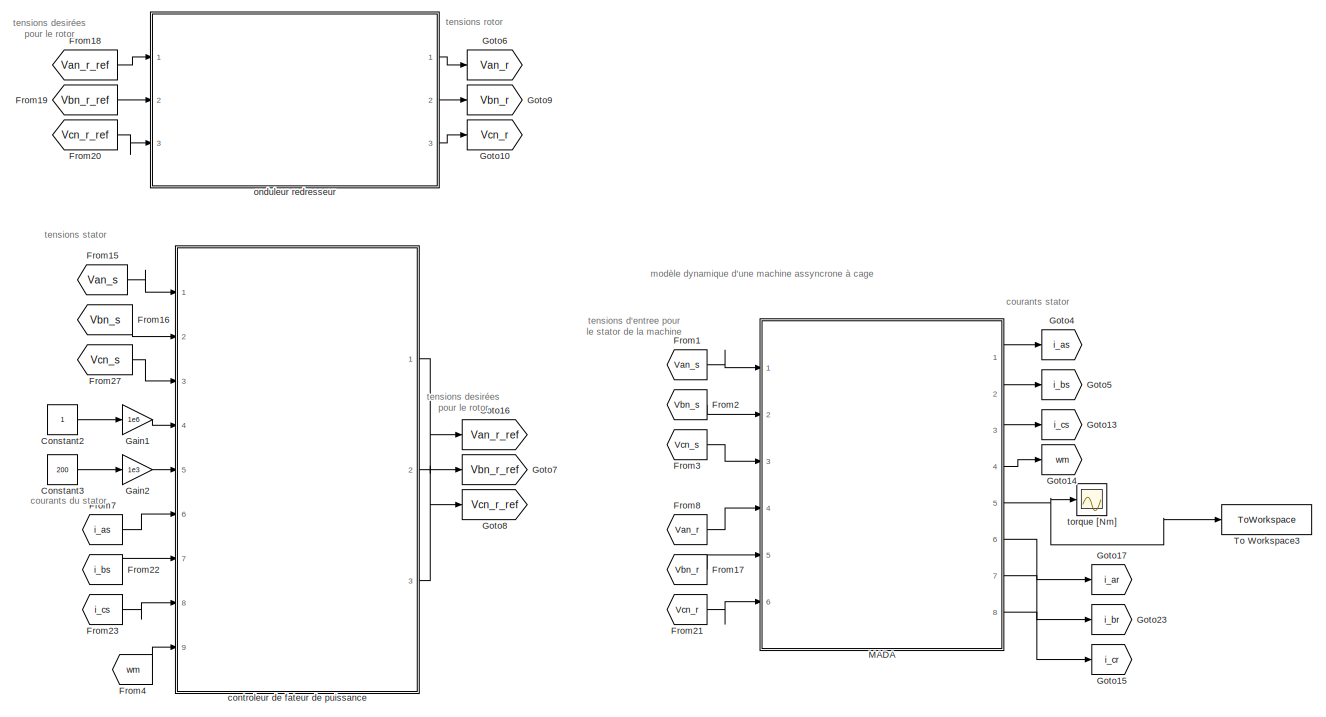
[diagram: root canvas - part 1/2, full width, top band]
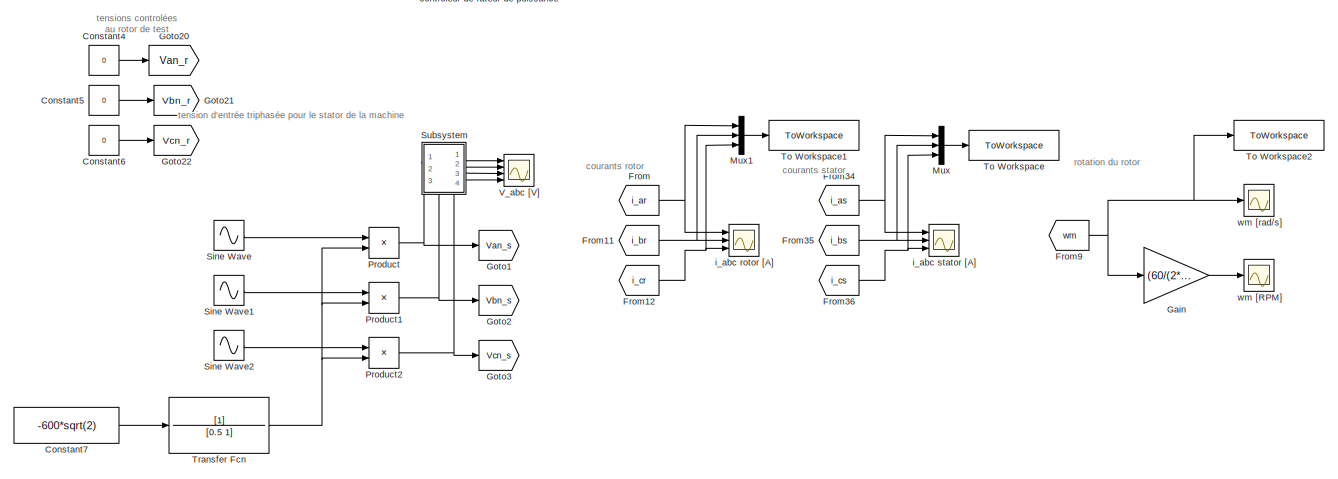
[diagram: root canvas - part 2/2, full width, bottom band]
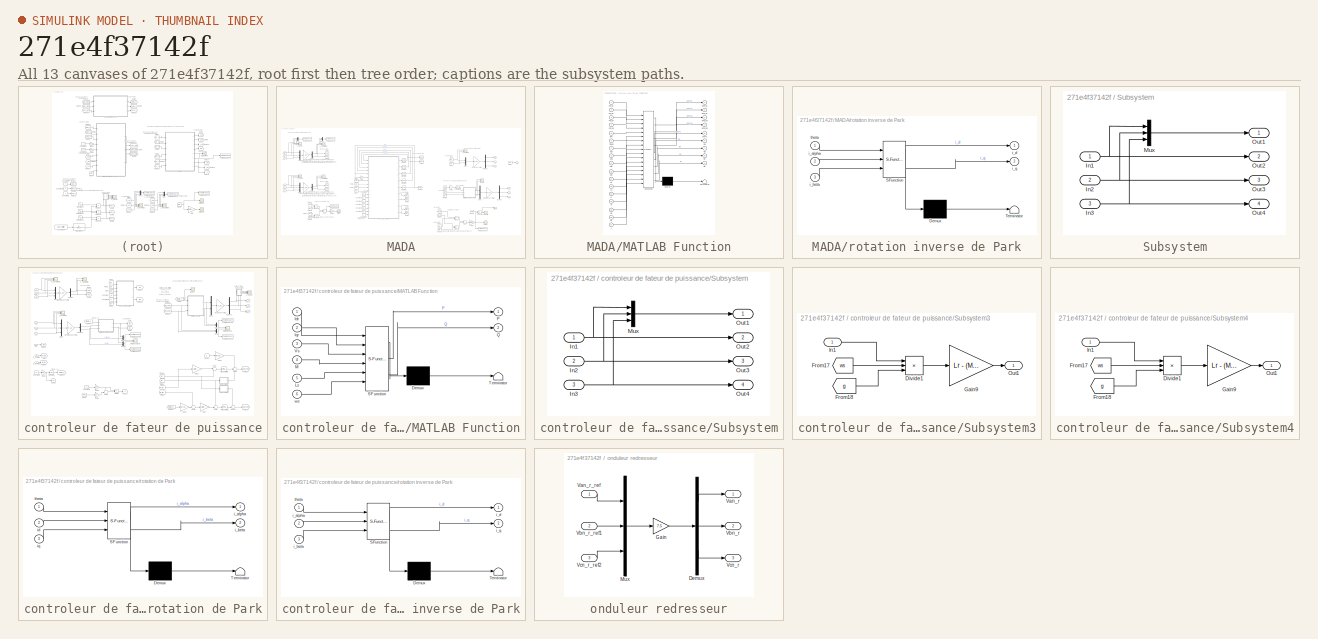
[diagram: thumbnail index - all 13 canvases of the model, root first then tree order]
MODEL slx_271e4f37142f
KIND model
CONFIG AbsTol = auto
CONFIG EnableMultiTasking = off
CONFIG FixedStep = fixed_step_size
CONFIG MaxStep = 1e-4
CONFIG MinStep = auto
CONFIG RelTol = 1e-3
CONFIG SampleTimeConstraint = Unconstrained
CONFIG Solver = ode4
CONFIG SolverName = ode4
CONFIG StartTime = start_time
CONFIG StopTime = stop_time
BLOCK [Constant] Constant2
BLOCK [Constant] Constant3
  Value = 200
BLOCK [Constant] Constant4
  Commented = on
  Value = 0
BLOCK [Constant] Constant5
  Commented = on
  Value = 0
BLOCK [Constant] Constant6
  Commented = on
  Value = 0
BLOCK [Constant] Constant7
  Value = -600*sqrt(2)
BLOCK [From] From
  GotoTag = i_ar
BLOCK [From] From1
  GotoTag = Van_s
BLOCK [From] From11
  GotoTag = i_br
BLOCK [From] From12
  GotoTag = i_cr
BLOCK [From] From15
  GotoTag = Van_s
BLOCK [From] From16
  GotoTag = Vbn_s
BLOCK [From] From17
  GotoTag = Vbn_r
BLOCK [From] From18
  GotoTag = Van_r_ref
BLOCK [From] From19
  GotoTag = Vbn_r_ref
BLOCK [From] From2
  GotoTag = Vbn_s
BLOCK [From] From20
  GotoTag = Vcn_r_ref
BLOCK [From] From21
  GotoTag = Vcn_r
BLOCK [From] From22
  GotoTag = i_bs
BLOCK [From] From23
  GotoTag = i_cs
BLOCK [From] From27
  GotoTag = Vcn_s
BLOCK [From] From3
  GotoTag = Vcn_s
BLOCK [From] From34
  GotoTag = i_as
BLOCK [From] From35
  GotoTag = i_bs
BLOCK [From] From36
  GotoTag = i_cs
BLOCK [From] From4
  GotoTag = wm
BLOCK [From] From7
  GotoTag = i_as
BLOCK [From] From8
  GotoTag = Van_r
BLOCK [From] From9
  GotoTag = wm
BLOCK [Gain] Gain
  Gain = (60/(2*pi))
BLOCK [Gain] Gain1
  Gain = 1e6
BLOCK [Gain] Gain2
  Gain = 1e3
BLOCK [Goto] Goto1
  GotoTag = Van_s
BLOCK [Goto] Goto10
  GotoTag = Vcn_r
BLOCK [Goto] Goto13
  GotoTag = i_cs
BLOCK [Goto] Goto14
  GotoTag = wm
BLOCK [Goto] Goto15
  GotoTag = i_cr
BLOCK [Goto] Goto16
  GotoTag = Van_r_ref
BLOCK [Goto] Goto17
  GotoTag = i_ar
BLOCK [Goto] Goto2
  GotoTag = Vbn_s
BLOCK [Goto] Goto20
  Commented = on
  GotoTag = Van_r
BLOCK [Goto] Goto21
  Commented = on
  GotoTag = Vbn_r
BLOCK [Goto] Goto22
  Commented = on
  GotoTag = Vcn_r
BLOCK [Goto] Goto23
  GotoTag = i_br
BLOCK [Goto] Goto3
  GotoTag = Vcn_s
BLOCK [Goto] Goto4
  GotoTag = i_as
BLOCK [Goto] Goto5
  GotoTag = i_bs
BLOCK [Goto] Goto6
  GotoTag = Van_r
BLOCK [Goto] Goto7
  GotoTag = Vbn_r_ref
BLOCK [Goto] Goto8
  GotoTag = Vcn_r_ref
BLOCK [Goto] Goto9
  GotoTag = Vbn_r
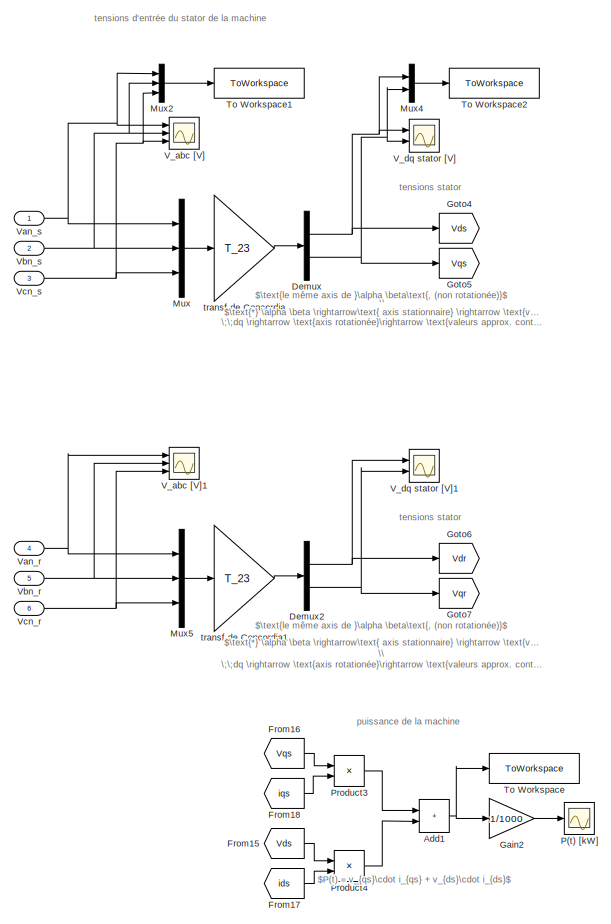
[diagram: MADA - part 1/3, left side, full height]
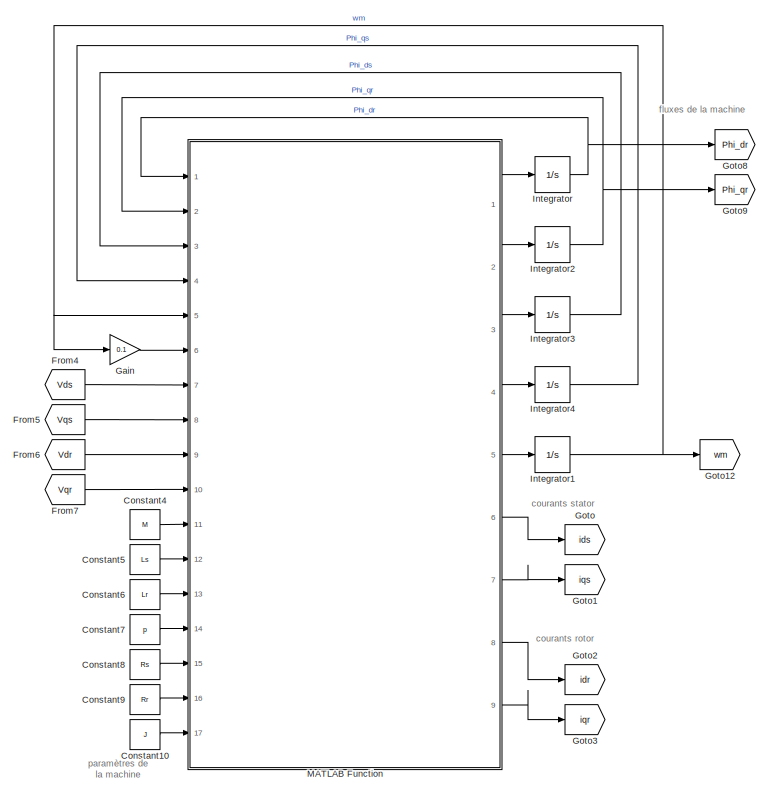
[diagram: MADA - part 2/3, center side, full height]
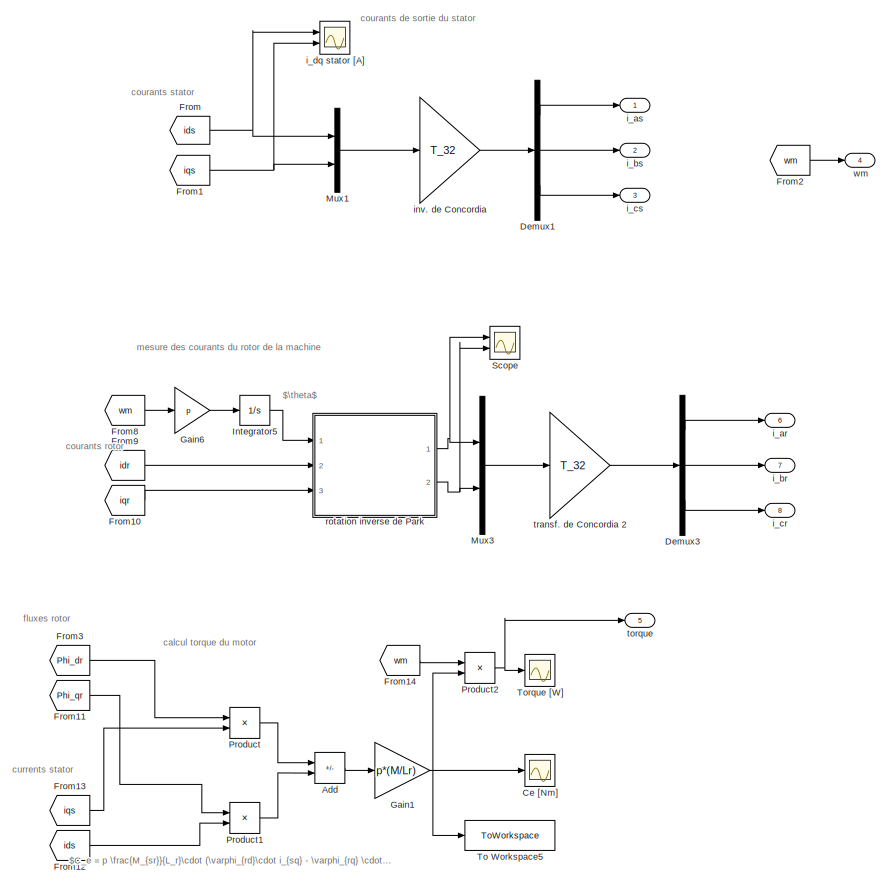
[diagram: MADA - part 3/3, right side, full height]
BLOCK [SubSystem] MADA
  Ports = [6, 8]
  RequestExecContextInheritance = off
BLOCK [Sum] MADA/Add
  IconShape = rectangular
  Inputs = +-
  Ports = [2, 1]
BLOCK [Sum] MADA/Add1
  IconShape = rectangular
  Ports = [2, 1]
BLOCK [Scope] MADA/Ce [Nm]
  Floating = off
  NumInputPorts = 1
  Ports = [1]
  ScopeSpecificationString = Simulink.scopes.TimeScopeBlockCfg('CurrentConfiguration', extmgr.ConfigurationSet(extmgr.Configuration('Core','General UI',true),extmgr.Configuration('Core','Source UI',true),extmgr.Configuration('Sources','WiredSimulink',true,'DataLoggingVariableName','ScopeData4'),extmgr.Configuration('Visuals','Time Domain',true,'SerializedDisplays',{struct('MinYLimReal','-1.02516','MaxYLimReal','9.22646','YLab...<+1427ch>
BLOCK [Constant] MADA/Constant10
  Value = J
BLOCK [Constant] MADA/Constant4
  Value = M
BLOCK [Constant] MADA/Constant5
  Value = Ls
BLOCK [Constant] MADA/Constant6
  Value = Lr
BLOCK [Constant] MADA/Constant7
  Value = p
BLOCK [Constant] MADA/Constant8
  Value = Rs
BLOCK [Constant] MADA/Constant9
  Value = Rr
BLOCK [Demux] MADA/Demux
  Outputs = 2
  Ports = [1, 2]
BLOCK [Demux] MADA/Demux1
  Outputs = 3
  Ports = [1, 3]
BLOCK [Demux] MADA/Demux2
  Outputs = 2
  Ports = [1, 2]
BLOCK [Demux] MADA/Demux3
  Outputs = 3
  Ports = [1, 3]
BLOCK [From] MADA/From
  GotoTag = ids
BLOCK [From] MADA/From1
  GotoTag = iqs
BLOCK [From] MADA/From10
  GotoTag = iqr
BLOCK [From] MADA/From11
  GotoTag = Phi_qr
BLOCK [From] MADA/From12
  GotoTag = ids
BLOCK [From] MADA/From13
  GotoTag = iqs
BLOCK [From] MADA/From14
  GotoTag = wm
BLOCK [From] MADA/From15
  GotoTag = Vds
BLOCK [From] MADA/From16
  GotoTag = Vqs
BLOCK [From] MADA/From17
  GotoTag = ids
BLOCK [From] MADA/From18
  GotoTag = iqs
BLOCK [From] MADA/From2
  GotoTag = wm
BLOCK [From] MADA/From3
  GotoTag = Phi_dr
BLOCK [From] MADA/From4
  GotoTag = Vds
BLOCK [From] MADA/From5
  GotoTag = Vqs
BLOCK [From] MADA/From6
  GotoTag = Vdr
BLOCK [From] MADA/From7
  GotoTag = Vqr
BLOCK [From] MADA/From8
  GotoTag = wm
BLOCK [From] MADA/From9
  GotoTag = idr
BLOCK [Gain] MADA/Gain
  Gain = 0.1
BLOCK [Gain] MADA/Gain1
  Gain = p*(M/Lr)
BLOCK [Gain] MADA/Gain2
  Gain = 1/1000
BLOCK [Gain] MADA/Gain6
  Gain = p
BLOCK [Goto] MADA/Goto
  GotoTag = ids
BLOCK [Goto] MADA/Goto1
  GotoTag = iqs
BLOCK [Goto] MADA/Goto12
  GotoTag = wm
BLOCK [Goto] MADA/Goto2
  GotoTag = idr
BLOCK [Goto] MADA/Goto3
  GotoTag = iqr
BLOCK [Goto] MADA/Goto4
  GotoTag = Vds
BLOCK [Goto] MADA/Goto5
  GotoTag = Vqs
BLOCK [Goto] MADA/Goto6
  GotoTag = Vdr
BLOCK [Goto] MADA/Goto7
  GotoTag = Vqr
BLOCK [Goto] MADA/Goto8
  GotoTag = Phi_dr
BLOCK [Goto] MADA/Goto9
  GotoTag = Phi_qr
BLOCK [Integrator] MADA/Integrator
  Ports = [1, 1]
BLOCK [Integrator] MADA/Integrator1
  Ports = [1, 1]
BLOCK [Integrator] MADA/Integrator2
  Ports = [1, 1]
BLOCK [Integrator] MADA/Integrator3
  Ports = [1, 1]
BLOCK [Integrator] MADA/Integrator4
  Ports = [1, 1]
BLOCK [Integrator] MADA/Integrator5
  Ports = [1, 1]
BLOCK [SubSystem] MADA/MATLAB Function
  ErrorFcn = Stateflow.Translate.translate
  PermitHierarchicalResolution = ExplicitOnly
  Ports = [17, 9]
  RequestExecContextInheritance = off
  SFBlockType = MATLAB Function
  TreatAsAtomicUnit = on
BLOCK [Demux] MADA/MATLAB Function/ Demux 
  Outputs = 1
  Ports = [1, 1]
BLOCK [S-Function] MADA/MATLAB Function/ SFunction 
  EnableBusSupport = on
  FunctionName = sf_sfun
  PortCounts = [17 10]
  Ports = [17, 10]
  SFcnIsStateOwnerBlock = off
  SFunctionDeploymentMode = off
  Tag = Stateflow S-Function 2
BLOCK [Terminator] MADA/MATLAB Function/ Terminator 
BLOCK [Inport] MADA/MATLAB Function/J
  Port = 17
BLOCK [Inport] MADA/MATLAB Function/Lr
  Port = 13
BLOCK [Inport] MADA/MATLAB Function/Ls
  Port = 12
BLOCK [Inport] MADA/MATLAB Function/M
  Port = 11
BLOCK [Inport] MADA/MATLAB Function/Phi_dr
BLOCK [Inport] MADA/MATLAB Function/Phi_ds
  Port = 3
BLOCK [Inport] MADA/MATLAB Function/Phi_qr
  Port = 2
BLOCK [Inport] MADA/MATLAB Function/Phi_qs
  Port = 4
BLOCK [Inport] MADA/MATLAB Function/Rr
  Port = 16
BLOCK [Inport] MADA/MATLAB Function/Rs
  Port = 15
BLOCK [Inport] MADA/MATLAB Function/Tload
  Port = 6
BLOCK [Inport] MADA/MATLAB Function/Vdr
  Port = 9
BLOCK [Inport] MADA/MATLAB Function/Vds
  Port = 7
BLOCK [Inport] MADA/MATLAB Function/Vqr
  Port = 10
BLOCK [Inport] MADA/MATLAB Function/Vqs
  Port = 8
BLOCK [Outport] MADA/MATLAB Function/dPhi_dr
BLOCK [Outport] MADA/MATLAB Function/dPhi_ds
  Port = 3
BLOCK [Outport] MADA/MATLAB Function/dPhi_qr
  Port = 2
BLOCK [Outport] MADA/MATLAB Function/dPhi_qs
  Port = 4
BLOCK [Outport] MADA/MATLAB Function/dWm
  Port = 5
BLOCK [Outport] MADA/MATLAB Function/idr
  Port = 8
BLOCK [Outport] MADA/MATLAB Function/ids
  Port = 6
BLOCK [Outport] MADA/MATLAB Function/iqr
  Port = 9
BLOCK [Outport] MADA/MATLAB Function/iqs
  Port = 7
BLOCK [Inport] MADA/MATLAB Function/p
  Port = 14
BLOCK [Inport] MADA/MATLAB Function/wm
  Port = 5
BLOCK [Mux] MADA/Mux
  DisplayOption = bar
  Inputs = 3
  Ports = [3, 1]
BLOCK [Mux] MADA/Mux1
  DisplayOption = bar
  Inputs = 2
  Ports = [2, 1]
BLOCK [Mux] MADA/Mux2
  DisplayOption = bar
  Inputs = 3
  Ports = [3, 1]
BLOCK [Mux] MADA/Mux3
  DisplayOption = bar
  Inputs = 2
  Ports = [2, 1]
BLOCK [Mux] MADA/Mux4
  DisplayOption = bar
  Inputs = 2
  Ports = [2, 1]
BLOCK [Mux] MADA/Mux5
  DisplayOption = bar
  Inputs = 3
  Ports = [3, 1]
BLOCK [Scope] MADA/P(t) [kW]
  Floating = off
  NumInputPorts = 1
  Ports = [1]
  ScopeSpecificationString = Simulink.scopes.TimeScopeBlockCfg('CurrentConfiguration', extmgr.ConfigurationSet(extmgr.Configuration('Core','General UI',true),extmgr.Configuration('Core','Source UI',true),extmgr.Configuration('Sources','WiredSimulink',true,'DataLoggingVariableName','ScopeData1'),extmgr.Configuration('Visuals','Time Domain',true,'SerializedDisplays',{struct('MinYLimReal','-0.02605','MaxYLimReal','0.23448','YLab...<+1441ch>
BLOCK [Product] MADA/Product
  Ports = [2, 1]
BLOCK [Product] MADA/Product1
  Ports = [2, 1]
BLOCK [Product] MADA/Product2
  Ports = [2, 1]
BLOCK [Product] MADA/Product3
  Ports = [2, 1]
BLOCK [Product] MADA/Product4
  Ports = [2, 1]
BLOCK [Scope] MADA/Scope
  Floating = off
  NumInputPorts = 2
  Ports = [2]
  ScopeSpecificationString = Simulink.scopes.TimeScopeBlockCfg('CurrentConfiguration', extmgr.ConfigurationSet(extmgr.Configuration('Core','General UI',true),extmgr.Configuration('Core','Source UI',true),extmgr.Configuration('Sources','WiredSimulink',true,'DataLoggingVariableName','ScopeData1'),extmgr.Configuration('Visuals','Time Domain',true,'SerializedDisplays',{struct('MinYLimReal','-174.79105','MaxYLimReal','174.79107','...<+1460ch>
BLOCK [ToWorkspace] MADA/To Workspace
  FixptAsFi = on
  MaxDataPoints = inf
  Ports = [1]
  SampleTime = -1
  VariableName = Pdq
BLOCK [ToWorkspace] MADA/To Workspace1
  FixptAsFi = on
  MaxDataPoints = inf
  Ports = [1]
  SampleTime = -1
  VariableName = vs_abc
BLOCK [ToWorkspace] MADA/To Workspace2
  FixptAsFi = on
  MaxDataPoints = inf
  Ports = [1]
  SampleTime = -1
  VariableName = vs_dq
BLOCK [ToWorkspace] MADA/To Workspace5
  FixptAsFi = on
  MaxDataPoints = inf
  Ports = [1]
  SampleTime = -1
  VariableName = Ce
BLOCK [Scope] MADA/Torque [W]
  Floating = off
  NumInputPorts = 1
  Ports = [1]
  ScopeSpecificationString = Simulink.scopes.TimeScopeBlockCfg('CurrentConfiguration', extmgr.ConfigurationSet(extmgr.Configuration('Core','General UI',true),extmgr.Configuration('Core','Source UI',true),extmgr.Configuration('Sources','WiredSimulink',true,'DataLoggingVariableName','ScopeData6'),extmgr.Configuration('Visuals','Time Domain',true,'SerializedDisplays',{struct('MinYLimReal','-1270.38391','MaxYLimReal','10696.89715...<+1452ch>
BLOCK [Scope] MADA/V_abc [V]
  Floating = off
  NumInputPorts = 3
  Ports = [3]
  ScopeSpecificationString = Simulink.scopes.TimeScopeBlockCfg('CurrentConfiguration', extmgr.ConfigurationSet(extmgr.Configuration('Core','General UI',true,'FigureColor',[0 0 0]),extmgr.Configuration('Core','Source UI',true),extmgr.Configuration('Sources','WiredSimulink',true,'DataLoggingVariableName','ScopeData8'),extmgr.Configuration('Visuals','Time Domain',true,'SerializedDisplays',{struct('MinYLimReal','-31.4681','MaxYLi...<+1942ch>
BLOCK [Scope] MADA/V_abc [V]1
  Floating = off
  NumInputPorts = 3
  Ports = [3]
  ScopeSpecificationString = Simulink.scopes.TimeScopeBlockCfg('CurrentConfiguration', extmgr.ConfigurationSet(extmgr.Configuration('Core','General UI',true,'FigureColor',[0 0 0]),extmgr.Configuration('Core','Source UI',true),extmgr.Configuration('Sources','WiredSimulink',true,'DataLoggingVariableName','ScopeData4'),extmgr.Configuration('Visuals','Time Domain',true,'SerializedDisplays',{struct('MinYLimReal','-31.4681','MaxYLi...<+1942ch>
BLOCK [Scope] MADA/V_dq stator [V]
  Floating = off
  NumInputPorts = 2
  Ports = [2]
  ScopeSpecificationString = Simulink.scopes.TimeScopeBlockCfg('CurrentConfiguration', extmgr.ConfigurationSet(extmgr.Configuration('Core','General UI',true),extmgr.Configuration('Core','Source UI',true),extmgr.Configuration('Sources','WiredSimulink',true,'DataLoggingVariableName','ScopeData1'),extmgr.Configuration('Visuals','Time Domain',true,'SerializedDisplays',{struct('MinYLimReal','-7.79069','MaxYLimReal','37.73641','YLa...<+1540ch>
BLOCK [Scope] MADA/V_dq stator [V]1
  Floating = off
  NumInputPorts = 2
  Ports = [2]
  ScopeSpecificationString = Simulink.scopes.TimeScopeBlockCfg('CurrentConfiguration', extmgr.ConfigurationSet(extmgr.Configuration('Core','General UI',true),extmgr.Configuration('Core','Source UI',true),extmgr.Configuration('Sources','WiredSimulink',true,'DataLoggingVariableName','ScopeData5'),extmgr.Configuration('Visuals','Time Domain',true,'SerializedDisplays',{struct('MinYLimReal','-7.79069','MaxYLimReal','37.73641','YLa...<+1540ch>
BLOCK [Inport] MADA/Van_r
  Port = 4
BLOCK [Inport] MADA/Van_s
BLOCK [Inport] MADA/Vbn_r
  Port = 5
BLOCK [Inport] MADA/Vbn_s
  Port = 2
BLOCK [Inport] MADA/Vcn_r
  Port = 6
BLOCK [Inport] MADA/Vcn_s
  Port = 3
BLOCK [Outport] MADA/i_ar
  Port = 6
BLOCK [Outport] MADA/i_as
BLOCK [Outport] MADA/i_br
  Port = 7
BLOCK [Outport] MADA/i_bs
  Port = 2
BLOCK [Outport] MADA/i_cr
  Port = 8
BLOCK [Outport] MADA/i_cs
  Port = 3
BLOCK [Scope] MADA/i_dq stator [A]
  Floating = off
  NumInputPorts = 2
  Ports = [2]
  ScopeSpecificationString = Simulink.scopes.TimeScopeBlockCfg('CurrentConfiguration', extmgr.ConfigurationSet(extmgr.Configuration('Core','General UI',true),extmgr.Configuration('Core','Source UI',true),extmgr.Configuration('Sources','WiredSimulink',true,'DataLoggingVariableName','ScopeData3'),extmgr.Configuration('Visuals','Time Domain',true,'SerializedDisplays',{struct('MinYLimReal','-205.0627','MaxYLimReal','213.28564','Y...<+1519ch>
BLOCK [Gain] MADA/inv. de Concordia
  Gain = T_32
  Multiplication = Matrix(K*u)
BLOCK [SubSystem] MADA/rotation inverse de Park
  ErrorFcn = Stateflow.Translate.translate
  PermitHierarchicalResolution = ExplicitOnly
  Ports = [3, 2]
  RequestExecContextInheritance = off
  SFBlockType = MATLAB Function
  TreatAsAtomicUnit = on
BLOCK [Demux] MADA/rotation inverse de Park/ Demux 
  Outputs = 1
  Ports = [1, 1]
BLOCK [S-Function] MADA/rotation inverse de Park/ SFunction 
  EnableBusSupport = on
  FunctionName = sf_sfun
  PortCounts = [3 3]
  Ports = [3, 3]
  SFcnIsStateOwnerBlock = off
  SFunctionDeploymentMode = off
  Tag = Stateflow S-Function 5
BLOCK [Terminator] MADA/rotation inverse de Park/ Terminator 
BLOCK [Inport] MADA/rotation inverse de Park/i_alpha
  Port = 2
BLOCK [Inport] MADA/rotation inverse de Park/i_beta
  Port = 3
BLOCK [Outport] MADA/rotation inverse de Park/i_d
BLOCK [Outport] MADA/rotation inverse de Park/i_q
  Port = 2
BLOCK [Inport] MADA/rotation inverse de Park/theta
BLOCK [Outport] MADA/torque
  Port = 5
BLOCK [Gain] MADA/transf de Concordia
  Gain = T_23
  Multiplication = Matrix(K*u)
BLOCK [Gain] MADA/transf de Concordia1
  Gain = T_23
  Multiplication = Matrix(K*u)
BLOCK [Gain] MADA/transf. de Concordia 2
  Gain = T_32
  Multiplication = Matrix(K*u)
BLOCK [Outport] MADA/wm
  Port = 4
BLOCK [Mux] Mux
  DisplayOption = bar
  Inputs = 3
  Ports = [3, 1]
BLOCK [Mux] Mux1
  DisplayOption = bar
  Inputs = 3
  Ports = [3, 1]
BLOCK [Product] Product
  Ports = [2, 1]
BLOCK [Product] Product1
  Ports = [2, 1]
BLOCK [Product] Product2
  Ports = [2, 1]
BLOCK [Sin] Sine Wave
  Frequency = 50*2*pi
  Ports = [0, 1]
  SampleTime = 0
BLOCK [Sin] Sine Wave1
  Frequency = 50*2*pi
  Phase = -2*pi/3
  Ports = [0, 1]
  SampleTime = 0
BLOCK [Sin] Sine Wave2
  Frequency = 50*2*pi
  Phase = (2*pi)/3
  Ports = [0, 1]
  SampleTime = 0
BLOCK [SubSystem] Subsystem
  PortSchema = {"entries":[{"content":{"sides":[{"content":{"connectorIds":[]},"type":"ConnectorPlacement.EquallySpacedRectSide","uuid":"f85b66a8-0283-4540-940c-33deb3ca5510"},{"content":{"connectorIds":["Out1","Out2","Out3","Out4"],"side":"RIGHT"},"type":"ConnectorPlacement.EquallySpacedRectSide","uuid":"e99f7d2c-d092-4cab-bef3-1d0691980dab"},{"content":{"connectorIds":[],"side":"TOP"},"type":"ConnectorPlacemen...<+419ch>
  Ports = [3, 4]
  RequestExecContextInheritance = off
BLOCK [Inport] Subsystem/In1
BLOCK [Inport] Subsystem/In2
  Port = 2
BLOCK [Inport] Subsystem/In3
  Port = 3
BLOCK [Mux] Subsystem/Mux
  DisplayOption = bar
  Inputs = 3
  Ports = [3, 1]
BLOCK [Outport] Subsystem/Out1
BLOCK [Outport] Subsystem/Out2
  Port = 2
BLOCK [Outport] Subsystem/Out3
  Port = 3
BLOCK [Outport] Subsystem/Out4
  Port = 4
BLOCK [ToWorkspace] To Workspace
  FixptAsFi = on
  MaxDataPoints = inf
  Ports = [1]
  SampleTime = -1
  VariableName = is_abc
BLOCK [ToWorkspace] To Workspace1
  FixptAsFi = on
  MaxDataPoints = inf
  Ports = [1]
  SampleTime = -1
  VariableName = ir_abc
BLOCK [ToWorkspace] To Workspace2
  FixptAsFi = on
  MaxDataPoints = inf
  Ports = [1]
  SampleTime = -1
  VariableName = wm
BLOCK [ToWorkspace] To Workspace3
  FixptAsFi = on
  MaxDataPoints = inf
  Ports = [1]
  SampleTime = -1
  VariableName = torque
BLOCK [TransferFcn] Transfer Fcn
  Denominator = [0.5 1]
BLOCK [Scope] V_abc [V]
  Floating = off
  NumInputPorts = 4
  Ports = [4]
  ScopeSpecificationString = Simulink.scopes.TimeScopeBlockCfg('CurrentConfiguration', extmgr.ConfigurationSet(extmgr.Configuration('Core','General UI',true,'FigureColor',[0 0 0]),extmgr.Configuration('Core','Source UI',true),extmgr.Configuration('Sources','WiredSimulink',true,'DataLoggingVariableName','ScopeData3'),extmgr.Configuration('Visuals','Time Domain',true,'SerializedDisplays',{struct('MinYLimReal','-35.52407','MaxYL...<+3976ch>
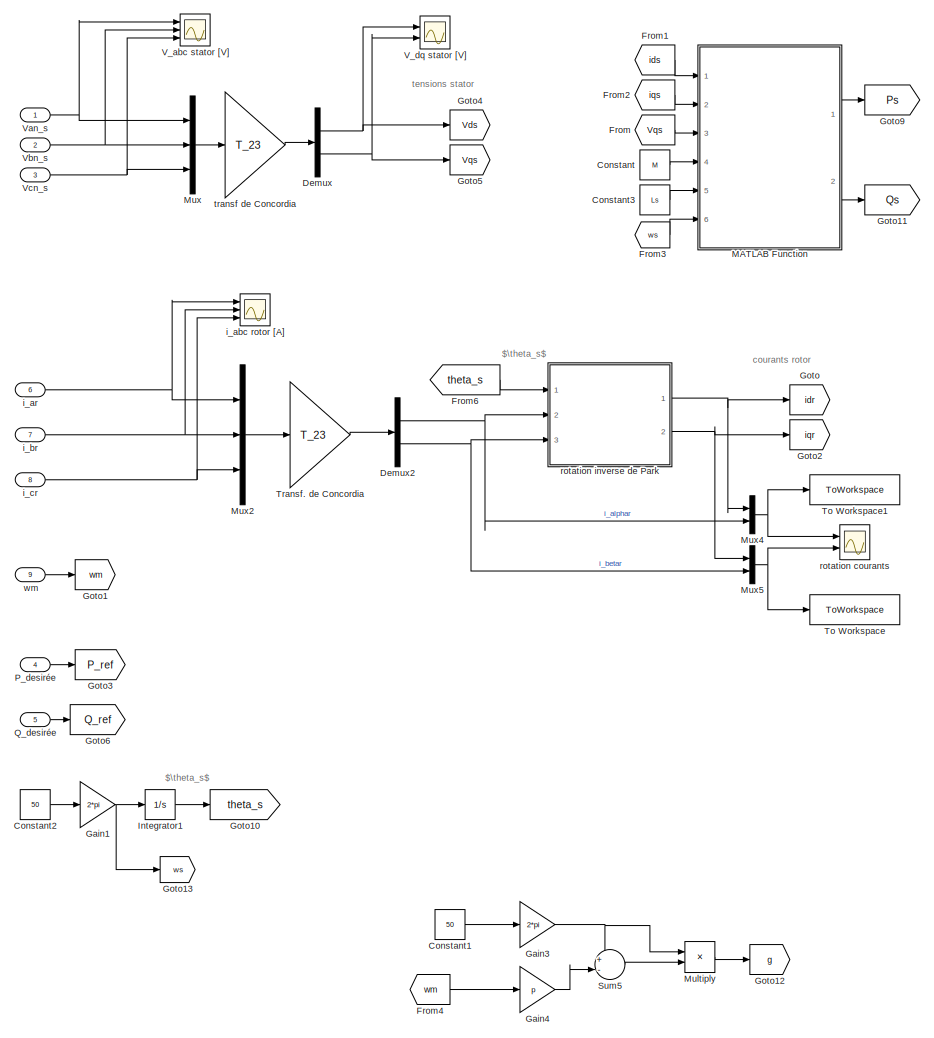
[diagram: controleur de fateur de puissance - part 1/2, left side, full height]
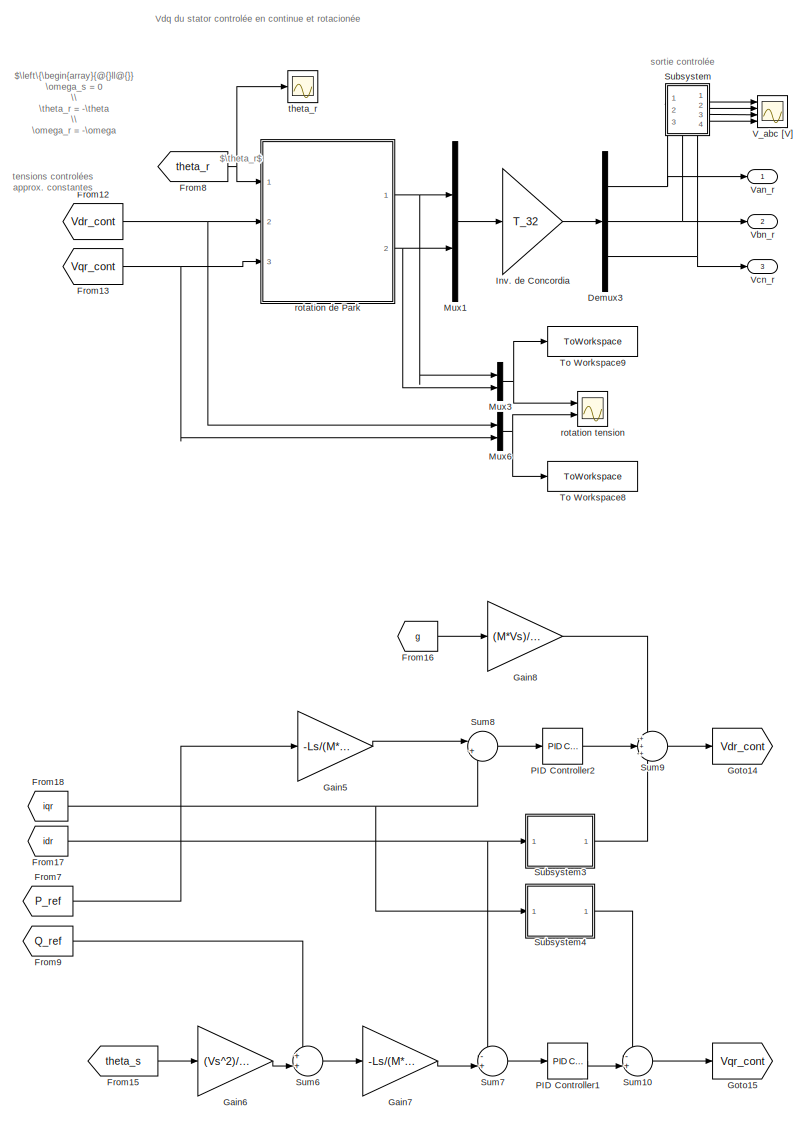
[diagram: controleur de fateur de puissance - part 2/2, right side, full height]
BLOCK [SubSystem] controleur de fateur de puissance
  Ports = [9, 3]
  RequestExecContextInheritance = off
BLOCK [Constant] controleur de fateur de puissance/Constant
  Value = M
BLOCK [Constant] controleur de fateur de puissance/Constant1
  Value = 50
BLOCK [Constant] controleur de fateur de puissance/Constant2
  Value = 50
BLOCK [Constant] controleur de fateur de puissance/Constant3
  Value = Ls
BLOCK [Demux] controleur de fateur de puissance/Demux
  Outputs = 2
  Ports = [1, 2]
BLOCK [Demux] controleur de fateur de puissance/Demux2
  Outputs = 2
  Ports = [1, 2]
BLOCK [Demux] controleur de fateur de puissance/Demux3
  Outputs = 3
  Ports = [1, 3]
BLOCK [From] controleur de fateur de puissance/From
  GotoTag = Vqs
BLOCK [From] controleur de fateur de puissance/From1
  GotoTag = ids
BLOCK [From] controleur de fateur de puissance/From12
  GotoTag = Vdr_cont
BLOCK [From] controleur de fateur de puissance/From13
  GotoTag = Vqr_cont
BLOCK [From] controleur de fateur de puissance/From15
  GotoTag = theta_s
BLOCK [From] controleur de fateur de puissance/From16
  GotoTag = g
BLOCK [From] controleur de fateur de puissance/From17
  GotoTag = idr
BLOCK [From] controleur de fateur de puissance/From18
  GotoTag = iqr
BLOCK [From] controleur de fateur de puissance/From2
  GotoTag = iqs
BLOCK [From] controleur de fateur de puissance/From3
  GotoTag = ws
BLOCK [From] controleur de fateur de puissance/From4
  GotoTag = wm
BLOCK [From] controleur de fateur de puissance/From6
  GotoTag = theta_s
BLOCK [From] controleur de fateur de puissance/From7
  GotoTag = P_ref
BLOCK [From] controleur de fateur de puissance/From8
  GotoTag = theta_r
BLOCK [From] controleur de fateur de puissance/From9
  GotoTag = Q_ref
BLOCK [Gain] controleur de fateur de puissance/Gain1
  Gain = 2*pi
BLOCK [Gain] controleur de fateur de puissance/Gain3
  Gain = 2*pi
BLOCK [Gain] controleur de fateur de puissance/Gain4
  Gain = p
BLOCK [Gain] controleur de fateur de puissance/Gain5
  Gain = -Ls/(M*Vs)
BLOCK [Gain] controleur de fateur de puissance/Gain6
  Gain = (Vs^2)/(Ls)
BLOCK [Gain] controleur de fateur de puissance/Gain7
  Gain = -Ls/(M*Vs)
BLOCK [Gain] controleur de fateur de puissance/Gain8
  Gain = (M*Vs)/Ls
BLOCK [Goto] controleur de fateur de puissance/Goto
  GotoTag = idr
BLOCK [Goto] controleur de fateur de puissance/Goto1
  GotoTag = wm
BLOCK [Goto] controleur de fateur de puissance/Goto10
  GotoTag = theta_s
BLOCK [Goto] controleur de fateur de puissance/Goto11
  GotoTag = Qs
BLOCK [Goto] controleur de fateur de puissance/Goto12
  GotoTag = g
BLOCK [Goto] controleur de fateur de puissance/Goto13
  GotoTag = ws
BLOCK [Goto] controleur de fateur de puissance/Goto14
  GotoTag = Vdr_cont
BLOCK [Goto] controleur de fateur de puissance/Goto15
  GotoTag = Vqr_cont
BLOCK [Goto] controleur de fateur de puissance/Goto2
  GotoTag = iqr
BLOCK [Goto] controleur de fateur de puissance/Goto3
  GotoTag = P_ref
BLOCK [Goto] controleur de fateur de puissance/Goto4
  Commented = on
  GotoTag = Vds
BLOCK [Goto] controleur de fateur de puissance/Goto5
  GotoTag = Vqs
BLOCK [Goto] controleur de fateur de puissance/Goto6
  GotoTag = Q_ref
BLOCK [Goto] controleur de fateur de puissance/Goto9
  GotoTag = Ps
BLOCK [Integrator] controleur de fateur de puissance/Integrator1
  Ports = [1, 1]
BLOCK [Gain] controleur de fateur de puissance/Inv. de Concordia
  Gain = T_32
  Multiplication = Matrix(K*u)
BLOCK [SubSystem] controleur de fateur de puissance/MATLAB Function
  ErrorFcn = Stateflow.Translate.translate
  PermitHierarchicalResolution = ExplicitOnly
  Ports = [6, 2]
  RequestExecContextInheritance = off
  SFBlockType = MATLAB Function
  TreatAsAtomicUnit = on
BLOCK [Demux] controleur de fateur de puissance/MATLAB Function/ Demux 
  Outputs = 1
  Ports = [1, 1]
BLOCK [S-Function] controleur de fateur de puissance/MATLAB Function/ SFunction 
  EnableBusSupport = on
  FunctionName = sf_sfun
  PortCounts = [6 3]
  Ports = [6, 3]
  SFcnIsStateOwnerBlock = off
  SFunctionDeploymentMode = off
  Tag = Stateflow S-Function 1
BLOCK [Terminator] controleur de fateur de puissance/MATLAB Function/ Terminator 
BLOCK [Inport] controleur de fateur de puissance/MATLAB Function/Idr
BLOCK [Inport] controleur de fateur de puissance/MATLAB Function/Iqr
  Port = 2
BLOCK [Inport] controleur de fateur de puissance/MATLAB Function/Ls
  Port = 5
BLOCK [Inport] controleur de fateur de puissance/MATLAB Function/M
  Port = 4
BLOCK [Outport] controleur de fateur de puissance/MATLAB Function/P
BLOCK [Outport] controleur de fateur de puissance/MATLAB Function/Q
  Port = 2
BLOCK [Inport] controleur de fateur de puissance/MATLAB Function/Vs
  Port = 3
BLOCK [Inport] controleur de fateur de puissance/MATLAB Function/ws
  Port = 6
BLOCK [Product] controleur de fateur de puissance/Multiply
  Inputs = **
  Ports = [2, 1]
BLOCK [Mux] controleur de fateur de puissance/Mux
  DisplayOption = bar
  Inputs = 3
  Ports = [3, 1]
BLOCK [Mux] controleur de fateur de puissance/Mux1
  DisplayOption = bar
  Inputs = 2
  Ports = [2, 1]
BLOCK [Mux] controleur de fateur de puissance/Mux2
  DisplayOption = bar
  Inputs = 3
  Ports = [3, 1]
BLOCK [Mux] controleur de fateur de puissance/Mux3
  DisplayOption = bar
  Inputs = 2
  Ports = [2, 1]
BLOCK [Mux] controleur de fateur de puissance/Mux4
  DisplayOption = bar
  Inputs = 2
  Ports = [2, 1]
BLOCK [Mux] controleur de fateur de puissance/Mux5
  DisplayOption = bar
  Inputs = 2
  Ports = [2, 1]
BLOCK [Mux] controleur de fateur de puissance/Mux6
  DisplayOption = bar
  Inputs = 2
  Ports = [2, 1]
BLOCK [Reference] controleur de fateur de puissance/PID Controller1  REF=simulink/Continuous/PID Controller
  Ports = [1, 1]
  SourceBlock = simulink/Continuous/PID Controller
  SourceProductBaseCode = SL
  SourceType = PID 1dof
BLOCK [Reference] controleur de fateur de puissance/PID Controller2  REF=simulink/Continuous/PID Controller
  Ports = [1, 1]
  SourceBlock = simulink/Continuous/PID Controller
  SourceProductBaseCode = SL
  SourceType = PID 1dof
BLOCK [Inport] controleur de fateur de puissance/P_desirée
  Port = 4
BLOCK [Inport] controleur de fateur de puissance/Q_desirée
  Port = 5
BLOCK [SubSystem] controleur de fateur de puissance/Subsystem
  PortSchema = {"entries":[{"content":{"sides":[{"content":{"connectorIds":[]},"type":"ConnectorPlacement.EquallySpacedRectSide","uuid":"f85b66a8-0283-4540-940c-33deb3ca5510"},{"content":{"connectorIds":["Out1","Out2","Out3","Out4"],"side":"RIGHT"},"type":"ConnectorPlacement.EquallySpacedRectSide","uuid":"e99f7d2c-d092-4cab-bef3-1d0691980dab"},{"content":{"connectorIds":[],"side":"TOP"},"type":"ConnectorPlacemen...<+419ch>
  Ports = [3, 4]
  RequestExecContextInheritance = off
BLOCK [Inport] controleur de fateur de puissance/Subsystem/In1
BLOCK [Inport] controleur de fateur de puissance/Subsystem/In2
  Port = 2
BLOCK [Inport] controleur de fateur de puissance/Subsystem/In3
  Port = 3
BLOCK [Mux] controleur de fateur de puissance/Subsystem/Mux
  DisplayOption = bar
  Inputs = 3
  Ports = [3, 1]
BLOCK [Outport] controleur de fateur de puissance/Subsystem/Out1
BLOCK [Outport] controleur de fateur de puissance/Subsystem/Out2
  Port = 2
BLOCK [Outport] controleur de fateur de puissance/Subsystem/Out3
  Port = 3
BLOCK [Outport] controleur de fateur de puissance/Subsystem/Out4
  Port = 4
BLOCK [SubSystem] controleur de fateur de puissance/Subsystem3
  Ports = [1, 1]
  RequestExecContextInheritance = off
BLOCK [Product] controleur de fateur de puissance/Subsystem3/Divide1
  Inputs = ***
  Ports = [3, 1]
BLOCK [From] controleur de fateur de puissance/Subsystem3/From17
  GotoTag = ws
BLOCK [From] controleur de fateur de puissance/Subsystem3/From18
  GotoTag = g
BLOCK [Gain] controleur de fateur de puissance/Subsystem3/Gain9
  Gain = Lr - (M^2)/Ls
BLOCK [Inport] controleur de fateur de puissance/Subsystem3/In1
BLOCK [Outport] controleur de fateur de puissance/Subsystem3/Out1
BLOCK [SubSystem] controleur de fateur de puissance/Subsystem4
  Ports = [1, 1]
  RequestExecContextInheritance = off
BLOCK [Product] controleur de fateur de puissance/Subsystem4/Divide1
  Inputs = ***
  Ports = [3, 1]
BLOCK [From] controleur de fateur de puissance/Subsystem4/From17
  GotoTag = ws
BLOCK [From] controleur de fateur de puissance/Subsystem4/From18
  GotoTag = g
BLOCK [Gain] controleur de fateur de puissance/Subsystem4/Gain9
  Gain = Lr - (M^2)/Ls
BLOCK [Inport] controleur de fateur de puissance/Subsystem4/In1
BLOCK [Outport] controleur de fateur de puissance/Subsystem4/Out1
BLOCK [Sum] controleur de fateur de puissance/Sum10
  Inputs = -+|
  Ports = [2, 1]
BLOCK [Sum] controleur de fateur de puissance/Sum5
  Inputs = +-|
  Ports = [2, 1]
BLOCK [Sum] controleur de fateur de puissance/Sum6
  Inputs = ++|
  Ports = [2, 1]
BLOCK [Sum] controleur de fateur de puissance/Sum7
  Inputs = -+|
  Ports = [2, 1]
BLOCK [Sum] controleur de fateur de puissance/Sum8
  Inputs = |+-
  Ports = [2, 1]
BLOCK [Sum] controleur de fateur de puissance/Sum9
  Inputs = +++
  Ports = [3, 1]
BLOCK [ToWorkspace] controleur de fateur de puissance/To Workspace
  FixptAsFi = on
  MaxDataPoints = inf
  Ports = [1]
  SampleTime = -1
  VariableName = is_alphabeta
BLOCK [ToWorkspace] controleur de fateur de puissance/To Workspace1
  FixptAsFi = on
  MaxDataPoints = inf
  Ports = [1]
  SampleTime = -1
  VariableName = is_dq
BLOCK [ToWorkspace] controleur de fateur de puissance/To Workspace8
  FixptAsFi = on
  MaxDataPoints = inf
  Ports = [1]
  SampleTime = -1
  VariableName = Vs_dq1
BLOCK [ToWorkspace] controleur de fateur de puissance/To Workspace9
  FixptAsFi = on
  MaxDataPoints = inf
  Ports = [1]
  SampleTime = -1
  VariableName = Vs_alphabeta1
BLOCK [Gain] controleur de fateur de puissance/Transf. de Concordia
  Gain = T_23
  Multiplication = Matrix(K*u)
BLOCK [Scope] controleur de fateur de puissance/V_abc [V]
  Floating = off
  NumInputPorts = 4
  Ports = [4]
  ScopeSpecificationString = Simulink.scopes.TimeScopeBlockCfg('CurrentConfiguration', extmgr.ConfigurationSet(extmgr.Configuration('Core','General UI',true,'FigureColor',[0 0 0]),extmgr.Configuration('Core','Source UI',true),extmgr.Configuration('Sources','WiredSimulink',true,'DataLoggingVariableName','ScopeData3'),extmgr.Configuration('Visuals','Time Domain',true,'SerializedDisplays',{struct('MinYLimReal','-13.46781','MaxYL...<+3974ch>
BLOCK [Scope] controleur de fateur de puissance/V_abc stator [V]
  Floating = off
  NumInputPorts = 3
  Ports = [3]
  ScopeSpecificationString = Simulink.scopes.TimeScopeBlockCfg('CurrentConfiguration', extmgr.ConfigurationSet(extmgr.Configuration('Core','General UI',true,'FigureColor',[0 0 0]),extmgr.Configuration('Core','Source UI',true),extmgr.Configuration('Sources','WiredSimulink',true,'DataLoggingVariableName','ScopeData1'),extmgr.Configuration('Visuals','Time Domain',true,'SerializedDisplays',{struct('MinYLimReal','-31.4681','MaxYLi...<+1942ch>
BLOCK [Scope] controleur de fateur de puissance/V_dq stator [V]
  Floating = off
  NumInputPorts = 2
  Ports = [2]
  ScopeSpecificationString = Simulink.scopes.TimeScopeBlockCfg('CurrentConfiguration', extmgr.ConfigurationSet(extmgr.Configuration('Core','General UI',true),extmgr.Configuration('Core','Source UI',true),extmgr.Configuration('Sources','WiredSimulink',true,'DataLoggingVariableName','ScopeData2'),extmgr.Configuration('Visuals','Time Domain',true,'SerializedDisplays',{struct('MinYLimReal','-7.79069','MaxYLimReal','37.73641','YLa...<+1540ch>
BLOCK [Outport] controleur de fateur de puissance/Van_r
BLOCK [Inport] controleur de fateur de puissance/Van_s
BLOCK [Outport] controleur de fateur de puissance/Vbn_r
  Port = 2
BLOCK [Inport] controleur de fateur de puissance/Vbn_s
  Port = 2
BLOCK [Outport] controleur de fateur de puissance/Vcn_r
  Port = 3
BLOCK [Inport] controleur de fateur de puissance/Vcn_s
  Port = 3
BLOCK [Scope] controleur de fateur de puissance/i_abc rotor [A]
  Floating = off
  NumInputPorts = 3
  Ports = [3]
  ScopeSpecificationString = Simulink.scopes.TimeScopeBlockCfg('CurrentConfiguration', extmgr.ConfigurationSet(extmgr.Configuration('Core','General UI',true,'FigureColor',[0 0 0]),extmgr.Configuration('Core','Source UI',true),extmgr.Configuration('Sources','WiredSimulink',true,'DataLoggingVariableName','ScopeData1'),extmgr.Configuration('Visuals','Time Domain',true,'SerializedDisplays',{struct('MinYLimReal','-1121.54843','Max...<+3134ch>
BLOCK [Inport] controleur de fateur de puissance/i_ar
  Port = 6
BLOCK [Inport] controleur de fateur de puissance/i_br
  Port = 7
BLOCK [Inport] controleur de fateur de puissance/i_cr
  Port = 8
BLOCK [Scope] controleur de fateur de puissance/rotation courants 
  Floating = off
  NumInputPorts = 2
  Ports = [2]
  ScopeSpecificationString = Simulink.scopes.TimeScopeBlockCfg('CurrentConfiguration', extmgr.ConfigurationSet(extmgr.Configuration('Core','General UI',true),extmgr.Configuration('Core','Source UI',true),extmgr.Configuration('Sources','WiredSimulink',true,'DataLoggingVariableName','ScopeData2'),extmgr.Configuration('Visuals','Time Domain',true,'SerializedDisplays',{struct('MinYLimReal','-265.6052','MaxYLimReal','265.60519','Y...<+2092ch>
BLOCK [SubSystem] controleur de fateur de puissance/rotation de Park
  ErrorFcn = Stateflow.Translate.translate
  PermitHierarchicalResolution = ExplicitOnly
  Ports = [3, 2]
  RequestExecContextInheritance = off
  SFBlockType = MATLAB Function
  TreatAsAtomicUnit = on
BLOCK [Demux] controleur de fateur de puissance/rotation de Park/ Demux 
  Outputs = 1
  Ports = [1, 1]
BLOCK [S-Function] controleur de fateur de puissance/rotation de Park/ SFunction 
  EnableBusSupport = on
  FunctionName = sf_sfun
  PortCounts = [3 3]
  Ports = [3, 3]
  SFcnIsStateOwnerBlock = off
  SFunctionDeploymentMode = off
  Tag = Stateflow S-Function 7
BLOCK [Terminator] controleur de fateur de puissance/rotation de Park/ Terminator 
BLOCK [Outport] controleur de fateur de puissance/rotation de Park/i_alpha
BLOCK [Outport] controleur de fateur de puissance/rotation de Park/i_beta
  Port = 2
BLOCK [Inport] controleur de fateur de puissance/rotation de Park/id
  Port = 2
BLOCK [Inport] controleur de fateur de puissance/rotation de Park/iq
  Port = 3
BLOCK [Inport] controleur de fateur de puissance/rotation de Park/theta
BLOCK [SubSystem] controleur de fateur de puissance/rotation inverse de Park
  ErrorFcn = Stateflow.Translate.translate
  PermitHierarchicalResolution = ExplicitOnly
  Ports = [3, 2]
  RequestExecContextInheritance = off
  SFBlockType = MATLAB Function
  TreatAsAtomicUnit = on
BLOCK [Demux] controleur de fateur de puissance/rotation inverse de Park/ Demux 
  Outputs = 1
  Ports = [1, 1]
BLOCK [S-Function] controleur de fateur de puissance/rotation inverse de Park/ SFunction 
  EnableBusSupport = on
  FunctionName = sf_sfun
  PortCounts = [3 3]
  Ports = [3, 3]
  SFcnIsStateOwnerBlock = off
  SFunctionDeploymentMode = off
  Tag = Stateflow S-Function 3
BLOCK [Terminator] controleur de fateur de puissance/rotation inverse de Park/ Terminator 
BLOCK [Inport] controleur de fateur de puissance/rotation inverse de Park/i_alpha
  Port = 2
BLOCK [Inport] controleur de fateur de puissance/rotation inverse de Park/i_beta
  Port = 3
BLOCK [Outport] controleur de fateur de puissance/rotation inverse de Park/i_d
BLOCK [Outport] controleur de fateur de puissance/rotation inverse de Park/i_q
  Port = 2
BLOCK [Inport] controleur de fateur de puissance/rotation inverse de Park/theta
BLOCK [Scope] controleur de fateur de puissance/rotation tension
  Floating = off
  NumInputPorts = 2
  Ports = [2]
  ScopeSpecificationString = Simulink.scopes.TimeScopeBlockCfg('CurrentConfiguration', extmgr.ConfigurationSet(extmgr.Configuration('Core','General UI',true),extmgr.Configuration('Core','Source UI',true),extmgr.Configuration('Sources','WiredSimulink',true,'DataLoggingVariableName','ScopeData4'),extmgr.Configuration('Visuals','Time Domain',true,'SerializedDisplays',{struct('MinYLimReal','5.67632','MaxYLimReal','9.04967','YLabe...<+2098ch>
BLOCK [Scope] controleur de fateur de puissance/theta_r
  Floating = off
  NumInputPorts = 1
  Ports = [1]
  ScopeSpecificationString = Simulink.scopes.TimeScopeBlockCfg('CurrentConfiguration', extmgr.ConfigurationSet(extmgr.Configuration('Core','General UI',true),extmgr.Configuration('Core','Source UI',true),extmgr.Configuration('Sources','WiredSimulink',true,'DataLoggingVariableName','ScopeData5'),extmgr.Configuration('Visuals','Time Domain',true,'SerializedDisplays',{struct('MinYLimReal','-9604.68881','MaxYLimReal','86442.19927...<+1417ch>
BLOCK [Gain] controleur de fateur de puissance/transf de Concordia
  Gain = T_23
  Multiplication = Matrix(K*u)
BLOCK [Inport] controleur de fateur de puissance/wm
  Port = 9
BLOCK [Scope] i_abc rotor [A]
  Floating = off
  NumInputPorts = 3
  Ports = [3]
  ScopeSpecificationString = Simulink.scopes.TimeScopeBlockCfg('CurrentConfiguration', extmgr.ConfigurationSet(extmgr.Configuration('Core','General UI',true,'FigureColor',[0 0 0]),extmgr.Configuration('Core','Source UI',true),extmgr.Configuration('Sources','WiredSimulink',true,'DataLoggingVariableName','ScopeData4'),extmgr.Configuration('Visuals','Time Domain',true,'SerializedDisplays',{struct('MinYLimReal','-88.12189','MaxYL...<+3171ch>
BLOCK [Scope] i_abc stator [A]
  Floating = off
  NumInputPorts = 3
  Ports = [3]
  ScopeSpecificationString = Simulink.scopes.TimeScopeBlockCfg('CurrentConfiguration', extmgr.ConfigurationSet(extmgr.Configuration('Core','General UI',true,'FigureColor',[0 0 0]),extmgr.Configuration('Core','Source UI',true),extmgr.Configuration('Sources','WiredSimulink',true,'DataLoggingVariableName','ScopeData1'),extmgr.Configuration('Visuals','Time Domain',true,'SerializedDisplays',{struct('MinYLimReal','-8464.54994','Max...<+3162ch>
BLOCK [SubSystem] onduleur redresseur
  Ports = [3, 3]
  RequestExecContextInheritance = off
BLOCK [Demux] onduleur redresseur/Demux
  Outputs = 3
  Ports = [1, 3]
BLOCK [Gain] onduleur redresseur/Gain
  Gain = 7.5
BLOCK [Mux] onduleur redresseur/Mux
  DisplayOption = bar
  Inputs = 3
  Ports = [3, 1]
BLOCK [Outport] onduleur redresseur/Van_r
BLOCK [Inport] onduleur redresseur/Van_r_ref
BLOCK [Outport] onduleur redresseur/Vbn_r
  Port = 2
BLOCK [Inport] onduleur redresseur/Vbn_r_ref1
  Port = 2
BLOCK [Outport] onduleur redresseur/Vcn_r
  Port = 3
BLOCK [Inport] onduleur redresseur/Vcn_r_ref2
  Port = 3
BLOCK [Scope] torque [Nm]
  Floating = off
  NumInputPorts = 1
  Ports = [1]
  ScopeSpecificationString = Simulink.scopes.TimeScopeBlockCfg('CurrentConfiguration', extmgr.ConfigurationSet(extmgr.Configuration('Core','General UI',true),extmgr.Configuration('Core','Source UI',true),extmgr.Configuration('Sources','WiredSimulink',true,'DataLoggingVariableName','ScopeData2'),extmgr.Configuration('Visuals','Time Domain',true,'SerializedDisplays',{struct('MinYLimReal','-1526.91099','MaxYLimReal','13742.1989'...<+1414ch>
BLOCK [Scope] wm [RPM]
  Floating = off
  NumInputPorts = 1
  Ports = [1]
  ScopeSpecificationString = Simulink.scopes.TimeScopeBlockCfg('CurrentConfiguration', extmgr.ConfigurationSet(extmgr.Configuration('Core','General UI',true),extmgr.Configuration('Core','Source UI',true),extmgr.Configuration('Sources','WiredSimulink',true,'DataLoggingVariableName','ScopeData3'),extmgr.Configuration('Visuals','Time Domain',true,'TimeAxisLabels','All','SerializedDisplays',{struct('MinYLimReal','-724.1559','MaxY...<+1814ch>
BLOCK [Scope] wm [rad//s]
  Floating = off
  NumInputPorts = 1
  Ports = [1]
  ScopeSpecificationString = Simulink.scopes.TimeScopeBlockCfg('CurrentConfiguration', extmgr.ConfigurationSet(extmgr.Configuration('Core','General UI',true),extmgr.Configuration('Core','Source UI',true),extmgr.Configuration('Sources','WiredSimulink',true,'DataLoggingVariableName','ScopeData2'),extmgr.Configuration('Visuals','Time Domain',true,'TimeAxisLabels','All','SerializedDisplays',{struct('MinYLimReal','-24.98916','MaxY...<+1841ch>
ANNOTATION (root): tensions desirées pour le rotor
ANNOTATION (root): courants du stator
ANNOTATION (root): courants rotor
ANNOTATION (root): courants stator
ANNOTATION (root): tensions controlées au rotor de test
ANNOTATION (root): tensions d'entree pour le stator de la machine
ANNOTATION (root): tensions rotor
ANNOTATION (root): tensions stator
ANNOTATION (root): modèle dynamique d'une machine assyncrone à cage
ANNOTATION (root): rotation du rotor
ANNOTATION (root): tension d'entrée triphasée pour le stator de la machine
ANNOTATION MADA: courants rotor
ANNOTATION MADA: courants stator
ANNOTATION MADA: currents stator
ANNOTATION MADA: fluxes de la machine
ANNOTATION MADA: fluxes rotor
ANNOTATION MADA: paramètres de la machine
ANNOTATION MADA: tensions stator
ANNOTATION MADA: $P(t) = v_{qs}\cdot i_{qs} + v_{ds}\cdot i_{ds}$
ANNOTATION MADA: $\text{*} \alpha \beta \rightarrow\text{ axis stationnaire} \rightarrow \text{valeurs alternées} \\ \;\;dq \rightarrow \text{axis rotationée}\rightarrow \text{valeurs approx. continues}$
ANNOTATION MADA: $\text{le même axis de }\alpha \beta\text{, (non rotationée)}$
ANNOTATION MADA: $\theta$
ANNOTATION MADA: $C_e = p \frac{M_{sr}}{L_r}\cdot (\varphi_{rd}\cdot i_{sq} - \varphi_{rq} \cdot i_{sd})$
ANNOTATION MADA: calcul torque du motor
ANNOTATION MADA: courants de sortie du stator
ANNOTATION MADA: mesure des courants du rotor de la machine
ANNOTATION MADA: puissance de la machine
ANNOTATION MADA: tensions d'entrée du stator de la machine
ANNOTATION controleur de fateur de puissance: courants rotor
ANNOTATION controleur de fateur de puissance: tensions controlées approx. constantes
ANNOTATION controleur de fateur de puissance: tensions stator
ANNOTATION controleur de fateur de puissance: $\theta_r$
ANNOTATION controleur de fateur de puissance: $\left\{\begin{array}{@{}ll@{}} \omega_s = 0 \\ \theta_r = -\theta \\ \omega_r = -\omega \end{array}\right. \Leftarrow \left\{\begin{array}{@{}ll@{}} \theta_s = \theta + \theta_r \;\; (6) \\ \omega_s = \omega + \omega_r \;\; (7) \\ \theta_s = 0 \;\;(17) \end{array}\right.$
ANNOTATION controleur de fateur de puissance: $\theta_s$
ANNOTATION controleur de fateur de puissance: Vdq du stator controlée en continue et rotacionée
ANNOTATION controleur de fateur de puissance: sortie controlée
LINE Constant2:1 -> Gain1:1
LINE Constant3:1 -> Gain2:1
LINE Constant4:1 -> Goto20:1
LINE Constant5:1 -> Goto21:1
LINE Constant6:1 -> Goto22:1
LINE Constant7:1 -> Transfer Fcn:1
NET From11:1 -> Mux1:2, i_abc rotor [A]:2
NET From12:1 -> Mux1:3, i_abc rotor [A]:3
LINE From15:1 -> controleur de fateur de puissance:1
LINE From16:1 -> controleur de fateur de puissance:2
LINE From17:1 -> MADA:5
LINE From18:1 -> onduleur redresseur:1
LINE From19:1 -> onduleur redresseur:2
LINE From1:1 -> MADA:1
LINE From20:1 -> onduleur redresseur:3
LINE From21:1 -> MADA:6
LINE From22:1 -> controleur de fateur de puissance:7
LINE From23:1 -> controleur de fateur de puissance:8
LINE From27:1 -> controleur de fateur de puissance:3
LINE From2:1 -> MADA:2
NET From34:1 -> Mux:1, i_abc stator [A]:1
NET From35:1 -> Mux:2, i_abc stator [A]:2
NET From36:1 -> Mux:3, i_abc stator [A]:3
LINE From3:1 -> MADA:3
LINE From4:1 -> controleur de fateur de puissance:9
LINE From7:1 -> controleur de fateur de puissance:6
LINE From8:1 -> MADA:4
NET From9:1 -> Gain:1, To Workspace2:1, wm [rad//s]:1
NET From:1 -> Mux1:1, i_abc rotor [A]:1
LINE Gain1:1 -> controleur de fateur de puissance:4
LINE Gain2:1 -> controleur de fateur de puissance:5
LINE Gain:1 -> wm [RPM]:1
NET MADA/Add1:1 -> MADA/Gain2:1, MADA/To Workspace:1
LINE MADA/Add:1 -> MADA/Gain1:1
LINE MADA/Constant10:1 -> MADA/MATLAB Function:17
LINE MADA/Constant4:1 -> MADA/MATLAB Function:11
LINE MADA/Constant5:1 -> MADA/MATLAB Function:12
LINE MADA/Constant6:1 -> MADA/MATLAB Function:13
LINE MADA/Constant7:1 -> MADA/MATLAB Function:14
LINE MADA/Constant8:1 -> MADA/MATLAB Function:15
LINE MADA/Constant9:1 -> MADA/MATLAB Function:16
LINE MADA/Demux1:1 -> MADA/i_as:1
LINE MADA/Demux1:2 -> MADA/i_bs:1
LINE MADA/Demux1:3 -> MADA/i_cs:1
NET MADA/Demux2:1 -> MADA/Goto6:1, MADA/V_dq stator [V]1:1
NET MADA/Demux2:2 -> MADA/Goto7:1, MADA/V_dq stator [V]1:2
LINE MADA/Demux3:1 -> MADA/i_ar:1
LINE MADA/Demux3:2 -> MADA/i_br:1
LINE MADA/Demux3:3 -> MADA/i_cr:1
NET MADA/Demux:1 -> MADA/Goto4:1, MADA/Mux4:1, MADA/V_dq stator [V]:1
NET MADA/Demux:2 -> MADA/Goto5:1, MADA/Mux4:2, MADA/V_dq stator [V]:2
LINE MADA/From10:1 -> MADA/rotation inverse de Park:3
LINE MADA/From11:1 -> MADA/Product1:1
LINE MADA/From12:1 -> MADA/Product1:2
LINE MADA/From13:1 -> MADA/Product:2
LINE MADA/From14:1 -> MADA/Product2:1
LINE MADA/From15:1 -> MADA/Product4:1
LINE MADA/From16:1 -> MADA/Product3:1
LINE MADA/From17:1 -> MADA/Product4:2
LINE MADA/From18:1 -> MADA/Product3:2
NET MADA/From1:1 -> MADA/Mux1:2, MADA/i_dq stator [A]:2
LINE MADA/From2:1 -> MADA/wm:1
LINE MADA/From3:1 -> MADA/Product:1
LINE MADA/From4:1 -> MADA/MATLAB Function:7
LINE MADA/From5:1 -> MADA/MATLAB Function:8
LINE MADA/From6:1 -> MADA/MATLAB Function:9
LINE MADA/From7:1 -> MADA/MATLAB Function:10
LINE MADA/From8:1 -> MADA/Gain6:1
LINE MADA/From9:1 -> MADA/rotation inverse de Park:2
NET MADA/From:1 -> MADA/Mux1:1, MADA/i_dq stator [A]:1
NET MADA/Gain1:1 -> MADA/Ce [Nm]:1, MADA/Product2:2, MADA/To Workspace5:1
LINE MADA/Gain2:1 -> MADA/P(t) [kW]:1
LINE MADA/Gain6:1 -> MADA/Integrator5:1
LINE MADA/Gain:1 -> MADA/MATLAB Function:6
NET MADA/Integrator1:1 -> MADA/Gain:1, MADA/Goto12:1, MADA/MATLAB Function:5
NET MADA/Integrator2:1 -> MADA/Goto9:1, MADA/MATLAB Function:2
LINE MADA/Integrator3:1 -> MADA/MATLAB Function:3
LINE MADA/Integrator4:1 -> MADA/MATLAB Function:4
LINE MADA/Integrator5:1 -> MADA/rotation inverse de Park:1
NET MADA/Integrator:1 -> MADA/Goto8:1, MADA/MATLAB Function:1
LINE MADA/MATLAB Function:1 -> MADA/Integrator:1
LINE MADA/MATLAB Function:2 -> MADA/Integrator2:1
LINE MADA/MATLAB Function:3 -> MADA/Integrator3:1
LINE MADA/MATLAB Function:4 -> MADA/Integrator4:1
LINE MADA/MATLAB Function:5 -> MADA/Integrator1:1
LINE MADA/MATLAB Function:6 -> MADA/Goto:1
LINE MADA/MATLAB Function:7 -> MADA/Goto1:1
LINE MADA/MATLAB Function:8 -> MADA/Goto2:1
LINE MADA/MATLAB Function:9 -> MADA/Goto3:1
LINE MADA/Mux1:1 -> MADA/inv. de Concordia:1
LINE MADA/Mux2:1 -> MADA/To Workspace1:1
LINE MADA/Mux3:1 -> MADA/transf. de Concordia 2:1
LINE MADA/Mux4:1 -> MADA/To Workspace2:1
LINE MADA/Mux5:1 -> MADA/transf de Concordia1:1
LINE MADA/Mux:1 -> MADA/transf de Concordia:1
LINE MADA/Product1:1 -> MADA/Add:2
NET MADA/Product2:1 -> MADA/Torque [W]:1, MADA/torque:1
LINE MADA/Product3:1 -> MADA/Add1:1
LINE MADA/Product4:1 -> MADA/Add1:2
LINE MADA/Product:1 -> MADA/Add:1
NET MADA/Van_r:1 -> MADA/Mux5:1, MADA/V_abc [V]1:1
NET MADA/Van_s:1 -> MADA/Mux2:1, MADA/Mux:1, MADA/V_abc [V]:1
NET MADA/Vbn_r:1 -> MADA/Mux5:2, MADA/V_abc [V]1:2
NET MADA/Vbn_s:1 -> MADA/Mux2:2, MADA/Mux:2, MADA/V_abc [V]:2
NET MADA/Vcn_r:1 -> MADA/Mux5:3, MADA/V_abc [V]1:3
NET MADA/Vcn_s:1 -> MADA/Mux2:3, MADA/Mux:3, MADA/V_abc [V]:3
LINE MADA/inv. de Concordia:1 -> MADA/Demux1:1
NET MADA/rotation inverse de Park:1 -> MADA/Mux3:1, MADA/Scope:1
NET MADA/rotation inverse de Park:2 -> MADA/Mux3:2, MADA/Scope:2
LINE MADA/transf de Concordia1:1 -> MADA/Demux2:1
LINE MADA/transf de Concordia:1 -> MADA/Demux:1
LINE MADA/transf. de Concordia 2:1 -> MADA/Demux3:1
LINE MADA:1 -> Goto4:1
LINE MADA:2 -> Goto5:1
LINE MADA:3 -> Goto13:1
LINE MADA:4 -> Goto14:1
NET MADA:5 -> To Workspace3:1, torque [Nm]:1
LINE MADA:6 -> Goto17:1
LINE MADA:7 -> Goto23:1
LINE MADA:8 -> Goto15:1
LINE Mux1:1 -> To Workspace1:1
LINE Mux:1 -> To Workspace:1
NET Product1:1 -> Goto2:1, Subsystem:2
NET Product2:1 -> Goto3:1, Subsystem:3
NET Product:1 -> Goto1:1, Subsystem:1
LINE Sine Wave1:1 -> Product1:1
LINE Sine Wave2:1 -> Product2:1
LINE Sine Wave:1 -> Product:1
NET Subsystem/In1:1 -> Subsystem/Mux:1, Subsystem/Out2:1
NET Subsystem/In2:1 -> Subsystem/Mux:2, Subsystem/Out3:1
NET Subsystem/In3:1 -> Subsystem/Mux:3, Subsystem/Out4:1
LINE Subsystem/Mux:1 -> Subsystem/Out1:1
LINE Subsystem:1 -> V_abc [V]:1
LINE Subsystem:2 -> V_abc [V]:2
LINE Subsystem:3 -> V_abc [V]:3
LINE Subsystem:4 -> V_abc [V]:4
NET Transfer Fcn:1 -> Product1:2, Product2:2, Product:2
LINE controleur de fateur de puissance/Constant1:1 -> controleur de fateur de puissance/Gain3:1
LINE controleur de fateur de puissance/Constant2:1 -> controleur de fateur de puissance/Gain1:1
LINE controleur de fateur de puissance/Constant3:1 -> controleur de fateur de puissance/MATLAB Function:5
LINE controleur de fateur de puissance/Constant:1 -> controleur de fateur de puissance/MATLAB Function:4
NET controleur de fateur de puissance/Demux2:1 -> controleur de fateur de puissance/Mux4:2, controleur de fateur de puissance/rotation inverse de Park:2
NET controleur de fateur de puissance/Demux2:2 -> controleur de fateur de puissance/Mux5:2, controleur de fateur de puissance/rotation inverse de Park:3
NET controleur de fateur de puissance/Demux3:1 -> controleur de fateur de puissance/Subsystem:1, controleur de fateur de puissance/Van_r:1
NET controleur de fateur de puissance/Demux3:2 -> controleur de fateur de puissance/Subsystem:2, controleur de fateur de puissance/Vbn_r:1
NET controleur de fateur de puissance/Demux3:3 -> controleur de fateur de puissance/Subsystem:3, controleur de fateur de puissance/Vcn_r:1
NET controleur de fateur de puissance/Demux:1 -> controleur de fateur de puissance/Goto4:1, controleur de fateur de puissance/V_dq stator [V]:1
NET controleur de fateur de puissance/Demux:2 -> controleur de fateur de puissance/Goto5:1, controleur de fateur de puissance/V_dq stator [V]:2
NET controleur de fateur de puissance/From12:1 -> controleur de fateur de puissance/Mux6:1, controleur de fateur de puissance/rotation de Park:2
NET controleur de fateur de puissance/From13:1 -> controleur de fateur de puissance/Mux6:2, controleur de fateur de puissance/rotation de Park:3
LINE controleur de fateur de puissance/From15:1 -> controleur de fateur de puissance/Gain6:1
LINE controleur de fateur de puissance/From16:1 -> controleur de fateur de puissance/Gain8:1
NET controleur de fateur de puissance/From17:1 -> controleur de fateur de puissance/Subsystem3:1, controleur de fateur de puissance/Sum7:1
NET controleur de fateur de puissance/From18:1 -> controleur de fateur de puissance/Subsystem4:1, controleur de fateur de puissance/Sum8:2
LINE controleur de fateur de puissance/From1:1 -> controleur de fateur de puissance/MATLAB Function:1
LINE controleur de fateur de puissance/From2:1 -> controleur de fateur de puissance/MATLAB Function:2
LINE controleur de fateur de puissance/From3:1 -> controleur de fateur de puissance/MATLAB Function:6
LINE controleur de fateur de puissance/From4:1 -> controleur de fateur de puissance/Gain4:1
LINE controleur de fateur de puissance/From6:1 -> controleur de fateur de puissance/rotation inverse de Park:1
LINE controleur de fateur de puissance/From7:1 -> controleur de fateur de puissance/Gain5:1
NET controleur de fateur de puissance/From8:1 -> controleur de fateur de puissance/rotation de Park:1, controleur de fateur de puissance/theta_r:1
LINE controleur de fateur de puissance/From9:1 -> controleur de fateur de puissance/Sum6:1
LINE controleur de fateur de puissance/From:1 -> controleur de fateur de puissance/MATLAB Function:3
NET controleur de fateur de puissance/Gain1:1 -> controleur de fateur de puissance/Goto13:1, controleur de fateur de puissance/Integrator1:1
NET controleur de fateur de puissance/Gain3:1 -> controleur de fateur de puissance/Multiply:1, controleur de fateur de puissance/Sum5:1
LINE controleur de fateur de puissance/Gain4:1 -> controleur de fateur de puissance/Sum5:2
LINE controleur de fateur de puissance/Gain5:1 -> controleur de fateur de puissance/Sum8:1
LINE controleur de fateur de puissance/Gain6:1 -> controleur de fateur de puissance/Sum6:2
LINE controleur de fateur de puissance/Gain7:1 -> controleur de fateur de puissance/Sum7:2
LINE controleur de fateur de puissance/Gain8:1 -> controleur de fateur de puissance/Sum9:1
LINE controleur de fateur de puissance/Integrator1:1 -> controleur de fateur de puissance/Goto10:1
LINE controleur de fateur de puissance/Inv. de Concordia:1 -> controleur de fateur de puissance/Demux3:1
LINE controleur de fateur de puissance/MATLAB Function:1 -> controleur de fateur de puissance/Goto9:1
LINE controleur de fateur de puissance/MATLAB Function:2 -> controleur de fateur de puissance/Goto11:1
LINE controleur de fateur de puissance/Multiply:1 -> controleur de fateur de puissance/Goto12:1
LINE controleur de fateur de puissance/Mux1:1 -> controleur de fateur de puissance/Inv. de Concordia:1
LINE controleur de fateur de puissance/Mux2:1 -> controleur de fateur de puissance/Transf. de Concordia:1
NET controleur de fateur de puissance/Mux3:1 -> controleur de fateur de puissance/To Workspace9:1, controleur de fateur de puissance/rotation tension:1
NET controleur de fateur de puissance/Mux4:1 -> controleur de fateur de puissance/To Workspace1:1, controleur de fateur de puissance/rotation courants :1
NET controleur de fateur de puissance/Mux5:1 -> controleur de fateur de puissance/To Workspace:1, controleur de fateur de puissance/rotation courants :2
NET controleur de fateur de puissance/Mux6:1 -> controleur de fateur de puissance/To Workspace8:1, controleur de fateur de puissance/rotation tension:2
LINE controleur de fateur de puissance/Mux:1 -> controleur de fateur de puissance/transf de Concordia:1
LINE controleur de fateur de puissance/PID Controller1:1 -> controleur de fateur de puissance/Sum10:2
LINE controleur de fateur de puissance/PID Controller2:1 -> controleur de fateur de puissance/Sum9:2
LINE controleur de fateur de puissance/P_desirée:1 -> controleur de fateur de puissance/Goto3:1
LINE controleur de fateur de puissance/Q_desirée:1 -> controleur de fateur de puissance/Goto6:1
NET controleur de fateur de puissance/Subsystem/In1:1 -> controleur de fateur de puissance/Subsystem/Mux:1, controleur de fateur de puissance/Subsystem/Out2:1
NET controleur de fateur de puissance/Subsystem/In2:1 -> controleur de fateur de puissance/Subsystem/Mux:2, controleur de fateur de puissance/Subsystem/Out3:1
NET controleur de fateur de puissance/Subsystem/In3:1 -> controleur de fateur de puissance/Subsystem/Mux:3, controleur de fateur de puissance/Subsystem/Out4:1
LINE controleur de fateur de puissance/Subsystem/Mux:1 -> controleur de fateur de puissance/Subsystem/Out1:1
LINE controleur de fateur de puissance/Subsystem3/Divide1:1 -> controleur de fateur de puissance/Subsystem3/Gain9:1
LINE controleur de fateur de puissance/Subsystem3/From17:1 -> controleur de fateur de puissance/Subsystem3/Divide1:2
LINE controleur de fateur de puissance/Subsystem3/From18:1 -> controleur de fateur de puissance/Subsystem3/Divide1:3
LINE controleur de fateur de puissance/Subsystem3/Gain9:1 -> controleur de fateur de puissance/Subsystem3/Out1:1
LINE controleur de fateur de puissance/Subsystem3/In1:1 -> controleur de fateur de puissance/Subsystem3/Divide1:1
LINE controleur de fateur de puissance/Subsystem3:1 -> controleur de fateur de puissance/Sum9:3
LINE controleur de fateur de puissance/Subsystem4/Divide1:1 -> controleur de fateur de puissance/Subsystem4/Gain9:1
LINE controleur de fateur de puissance/Subsystem4/From17:1 -> controleur de fateur de puissance/Subsystem4/Divide1:2
LINE controleur de fateur de puissance/Subsystem4/From18:1 -> controleur de fateur de puissance/Subsystem4/Divide1:3
LINE controleur de fateur de puissance/Subsystem4/Gain9:1 -> controleur de fateur de puissance/Subsystem4/Out1:1
LINE controleur de fateur de puissance/Subsystem4/In1:1 -> controleur de fateur de puissance/Subsystem4/Divide1:1
LINE controleur de fateur de puissance/Subsystem4:1 -> controleur de fateur de puissance/Sum10:1
LINE controleur de fateur de puissance/Subsystem:1 -> controleur de fateur de puissance/V_abc [V]:1
LINE controleur de fateur de puissance/Subsystem:2 -> controleur de fateur de puissance/V_abc [V]:2
LINE controleur de fateur de puissance/Subsystem:3 -> controleur de fateur de puissance/V_abc [V]:3
LINE controleur de fateur de puissance/Subsystem:4 -> controleur de fateur de puissance/V_abc [V]:4
LINE controleur de fateur de puissance/Sum10:1 -> controleur de fateur de puissance/Goto15:1
LINE controleur de fateur de puissance/Sum5:1 -> controleur de fateur de puissance/Multiply:2
LINE controleur de fateur de puissance/Sum6:1 -> controleur de fateur de puissance/Gain7:1
LINE controleur de fateur de puissance/Sum7:1 -> controleur de fateur de puissance/PID Controller1:1
LINE controleur de fateur de puissance/Sum8:1 -> controleur de fateur de puissance/PID Controller2:1
LINE controleur de fateur de puissance/Sum9:1 -> controleur de fateur de puissance/Goto14:1
LINE controleur de fateur de puissance/Transf. de Concordia:1 -> controleur de fateur de puissance/Demux2:1
NET controleur de fateur de puissance/Van_s:1 -> controleur de fateur de puissance/Mux:1, controleur de fateur de puissance/V_abc stator [V]:1
NET controleur de fateur de puissance/Vbn_s:1 -> controleur de fateur de puissance/Mux:2, controleur de fateur de puissance/V_abc stator [V]:2
NET controleur de fateur de puissance/Vcn_s:1 -> controleur de fateur de puissance/Mux:3, controleur de fateur de puissance/V_abc stator [V]:3
NET controleur de fateur de puissance/i_ar:1 -> controleur de fateur de puissance/Mux2:1, controleur de fateur de puissance/i_abc rotor [A]:1
NET controleur de fateur de puissance/i_br:1 -> controleur de fateur de puissance/Mux2:2, controleur de fateur de puissance/i_abc rotor [A]:2
NET controleur de fateur de puissance/i_cr:1 -> controleur de fateur de puissance/Mux2:3, controleur de fateur de puissance/i_abc rotor [A]:3
NET controleur de fateur de puissance/rotation de Park:1 -> controleur de fateur de puissance/Mux1:1, controleur de fateur de puissance/Mux3:1
NET controleur de fateur de puissance/rotation de Park:2 -> controleur de fateur de puissance/Mux1:2, controleur de fateur de puissance/Mux3:2
NET controleur de fateur de puissance/rotation inverse de Park:1 -> controleur de fateur de puissance/Goto:1, controleur de fateur de puissance/Mux4:1
NET controleur de fateur de puissance/rotation inverse de Park:2 -> controleur de fateur de puissance/Goto2:1, controleur de fateur de puissance/Mux5:1
LINE controleur de fateur de puissance/transf de Concordia:1 -> controleur de fateur de puissance/Demux:1
LINE controleur de fateur de puissance/wm:1 -> controleur de fateur de puissance/Goto1:1
LINE controleur de fateur de puissance:1 -> Goto16:1
LINE controleur de fateur de puissance:2 -> Goto7:1
LINE controleur de fateur de puissance:3 -> Goto8:1
LINE onduleur redresseur/Demux:1 -> onduleur redresseur/Van_r:1
LINE onduleur redresseur/Demux:2 -> onduleur redresseur/Vbn_r:1
LINE onduleur redresseur/Demux:3 -> onduleur redresseur/Vcn_r:1
LINE onduleur redresseur/Gain:1 -> onduleur redresseur/Demux:1
LINE onduleur redresseur/Mux:1 -> onduleur redresseur/Gain:1
LINE onduleur redresseur/Van_r_ref:1 -> onduleur redresseur/Mux:1
LINE onduleur redresseur/Vbn_r_ref1:1 -> onduleur redresseur/Mux:2
LINE onduleur redresseur/Vcn_r_ref2:1 -> onduleur redresseur/Mux:3
LINE onduleur redresseur:1 -> Goto6:1
LINE onduleur redresseur:2 -> Goto9:1
LINE onduleur redresseur:3 -> Goto10:1
note: NET lines group one-source signal fan-out (src -> all destinations, sorted); 1:1 wires keep LINE
CHART MADA/rotation inverse de Park states=1 transitions=1
  STATE_LABEL 'eML_blk_kernel()'
  STATE_LABEL "SCRIPT:\nfunction [i_d,i_q] = P_mtheta(theta, i_alpha, i_beta)\n% P_theta Réalise la transformation inverse de Park.\n%\n% Cette fonction applique la transformation inverse de Park pour convertir les courants\n% de l'axe alpha-bêta vers l'axe d-q (direct-quadrature).\n% La transformation de Park est couramment utilisée dans le contrôle des moteurs AC\n% et les onduleurs de puissance.\n%\n% Arguments :\n%   ...<+498ch>"
CHART controleur de fateur de puissance/rotation de Park states=1 transitions=1
  STATE_LABEL 'eML_blk_kernel()'
  STATE_LABEL "SCRIPT:\nfunction [i_alpha,i_beta] = P_theta(theta, id, iq)\n% P_theta Réalise la transformation de Park.\n%\n% Cette fonction applique la transformation de Park pour convertir \n% les courants de l'axe d-q (direct-quadrature) vers l'axe alpha-bêta.\n% La transformation de Park est couramment utilisée dans le contrôle des \n% moteurs AC et les onduleurs de puissance.\n%\n% Arguments :\n%   theta (float): L'...<+479ch>"
CHART controleur de fateur de puissance/MATLAB Function states=1 transitions=1
  STATE_LABEL 'eML_blk_kernel()'
  STATE_LABEL 'SCRIPT:\nfunction [P,Q]  = fcn(Idr,Iqr,Vs, M, Ls, ws)\n\nP = -Vs*(M/Ls)*Iqr;\nQ = -Vs*(M/Ls)*Idr + (Vs^2)/(Ls*ws);\n'
CHART MADA/MATLAB Function states=1 transitions=1
  STATE_LABEL 'eML_blk_kernel()'
  STATE_LABEL "SCRIPT:\n function [dPhi_dr,dPhi_qr,dPhi_ds,dPhi_qs,dWm,ids,iqs,idr,iqr] = dynamique_machine(Phi_dr,Phi_qr,Phi_ds,Phi_qs,wm,Tload,Vds,Vqs,Vdr,Vqr,M,Ls,Lr,p,Rs,Rr,J)\n\n% dPhi Calcul de la dérivée du flux de liaison magnétique, de la dérivée de la vitesse mécanique de l'arbre et du courant dans une machine asynchrone\n% \n% Inputs:\n%   Phis  : Vecteur des flux de liaison magnétiques\n%   wm    : Vitesse ...<+1268ch>"
CHART controleur de fateur de puissance/rotation inverse de Park states=1 transitions=1
  STATE_LABEL 'eML_blk_kernel()'
  STATE_LABEL "SCRIPT:\nfunction [i_d,i_q] = P_mtheta(theta, i_alpha, i_beta)\n% P_theta Réalise la transformation inverse de Park.\n%\n% Cette fonction applique la transformation inverse de Park pour convertir les courants\n% de l'axe alpha-bêta vers l'axe d-q (direct-quadrature).\n% La transformation de Park est couramment utilisée dans le contrôle des moteurs AC\n% et les onduleurs de puissance.\n%\n% Arguments :\n%   ...<+498ch>"
CHART  states=0 transitions=0
CHART  states=0 transitions=0
CHART  states=0 transitions=0
CHART  states=0 transitions=0
CHART  states=0 transitions=0
